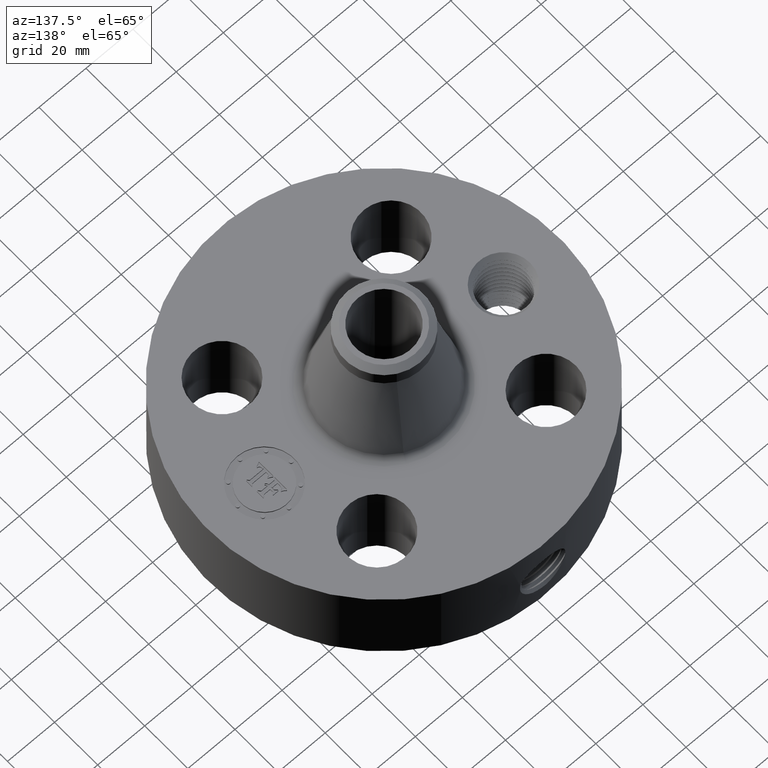
[diagram: clean part render]
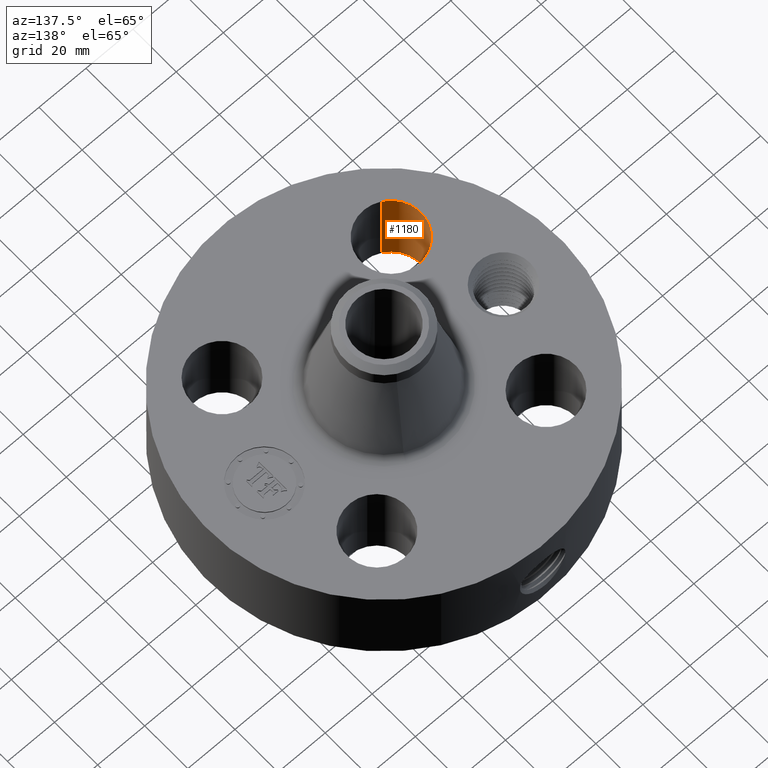
[diagram: same view with one face highlighted and labeled with its STEP entity id]
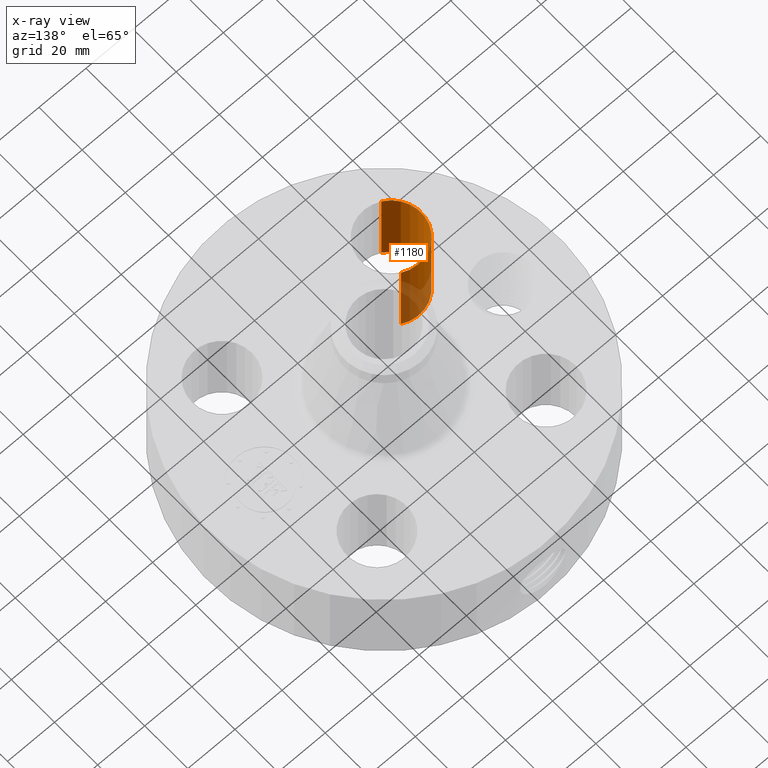
[diagram: x-ray of the same camera — body ghosted, the highlighted face saturated]
A machine part, auxiliary view. The second image highlights one B-rep face of the part: STEP entity #1180.
The next image is the same camera in x-ray: the body ghosted, the highlighted face saturated — about 24% of this face is hidden behind the body in this view.
In plain terms, the highlighted cylindrical surface (partial cylindrical patch) has radius 12.7 mm, axis along (0, -0, -1).
Its self-contained STEP definition (entity closure, byte-faithful):
#272=AXIS2_PLACEMENT_3D('Circle Axis2P3D',#270,#271,$) ;
#511=AXIS2_PLACEMENT_3D('Circle Axis2P3D',#509,#510,$) ;
#1155=AXIS2_PLACEMENT_3D('Cylinder Axis2P3D',#1152,#1153,#1154) ;
#265=CARTESIAN_POINT('Vertex',(-1.17450079308,-0.975422281432,0.250000000001)) ;
#267=CARTESIAN_POINT('Vertex',(-1.65392633168,-1.85300484333,0.250000000001)) ;
#270=CARTESIAN_POINT('Axis2P3D Location',(-1.41421356238,-1.41421356238,0.250000000001)) ;
#509=CARTESIAN_POINT('Axis2P3D Location',(-1.41421356238,-1.41421356238,1.75000000001)) ;
#513=CARTESIAN_POINT('Vertex',(-1.65392633168,-1.85300484333,1.75000000001)) ;
#515=CARTESIAN_POINT('Vertex',(-1.17450079308,-0.975422281432,1.75000000001)) ;
#1152=CARTESIAN_POINT('Axis2P3D Location',(-1.41421356238,-1.41421356238,1.74606299213)) ;
#1157=CARTESIAN_POINT('Line Origine',(-1.17450079308,-0.975422281432,1.)) ;
#1162=CARTESIAN_POINT('Line Origine',(-1.65392633168,-1.85300484333,1.)) ;
#271=DIRECTION('Axis2P3D Direction',(0.,0.,-0.0393700787402)) ;
#510=DIRECTION('Axis2P3D Direction',(0.,0.,-0.0393700787402)) ;
#1153=DIRECTION('Axis2P3D Direction',(0.,-0.,-0.0393700787402)) ;
#1154=DIRECTION('Axis2P3D XDirection',(-0.0188750212049,-0.0345504945626,0.)) ;
#1158=DIRECTION('Vector Direction',(0.,0.,-0.0393700787402)) ;
#1163=DIRECTION('Vector Direction',(0.,0.,-0.0393700787402)) ;
#1159=VECTOR('Line Direction',#1158,0.0393700787402) ;
#1164=VECTOR('Line Direction',#1163,0.0393700787402) ;
#1175=ORIENTED_EDGE('',*,*,#1166,.F.) ;
#1176=ORIENTED_EDGE('',*,*,#274,.T.) ;
#1177=ORIENTED_EDGE('',*,*,#1161,.T.) ;
#1178=ORIENTED_EDGE('',*,*,#517,.F.) ;
#1180=ADVANCED_FACE('PartBody',(#1179),#1156,.F.) ;
#273=CIRCLE('generated circle',#272,0.500000000002) ;
#512=CIRCLE('generated circle',#511,0.500000000002) ;
#1156=CYLINDRICAL_SURFACE('generated cylinder',#1155,0.500000000002) ;
#274=EDGE_CURVE('',#268,#266,#273,.T.) ;
#517=EDGE_CURVE('',#514,#516,#512,.T.) ;
#1161=EDGE_CURVE('',#266,#516,#1160,.F.) ;
#1166=EDGE_CURVE('',#268,#514,#1165,.F.) ;
#1174=EDGE_LOOP('',(#1175,#1176,#1177,#1178)) ;
#1179=FACE_OUTER_BOUND('',#1174,.T.) ;
#1160=LINE('Line',#1157,#1159) ;
#1165=LINE('Line',#1162,#1164) ;
#266=VERTEX_POINT('',#265) ;
#268=VERTEX_POINT('',#267) ;
#514=VERTEX_POINT('',#513) ;
#516=VERTEX_POINT('',#515) ;